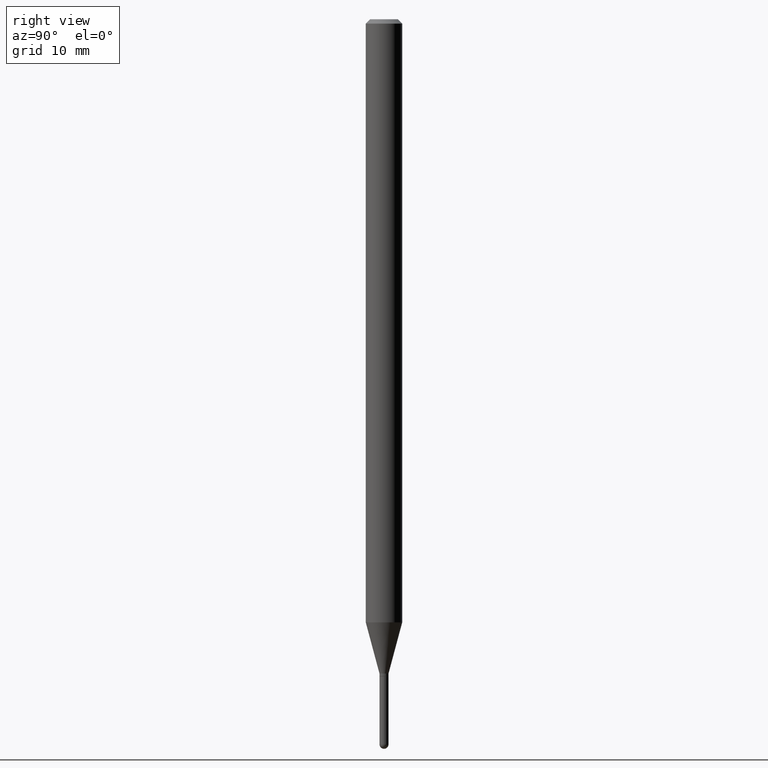
[diagram: clean part render]
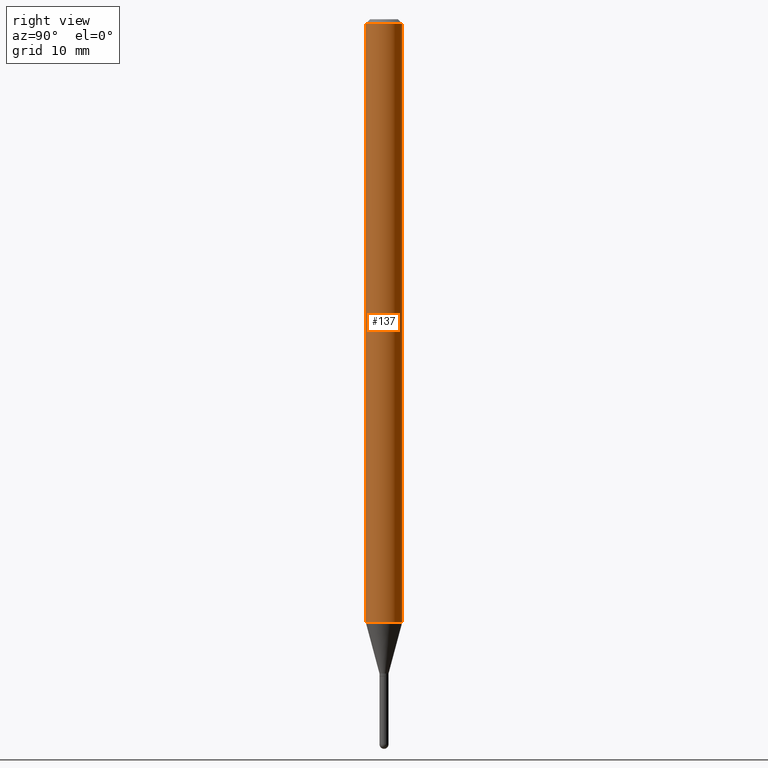
[diagram: same view with one face highlighted and labeled with its STEP entity id]
A machine part, right view. The second image highlights one B-rep face of the part: STEP entity #137.
In plain terms, the highlighted cylindrical surface (edge-blend (fillet) strip) has radius 1.5875 mm, axis along (-0, 0, 1).
Its self-contained STEP definition (entity closure, byte-faithful):
#6 = CIRCLE ( 'NONE', #80, 0.06250000000000000000 ) ;
#18 = CARTESIAN_POINT ( 'NONE',  ( 4.440892098501133991E-16, 0.06249999999999993755, -0.01500000000000054588 ) ) ;
#29 = EDGE_CURVE ( 'NONE', #136, #60, #338, .T. ) ;
#52 = DIRECTION ( 'NONE',  ( -2.445459540351193417E-29, 3.491494608044730760E-15, 1.000000000000000000 ) ) ;
#60 = VERTEX_POINT ( 'NONE', #18 ) ;
#68 = EDGE_CURVE ( 'NONE', #432, #247, #185, .T. ) ;
#80 = AXIS2_PLACEMENT_3D ( 'NONE', #118, #505, #509 ) ;
#118 = CARTESIAN_POINT ( 'NONE',  ( 5.053771064602474327E-29, -7.215500453472225430E-15, -2.066593612044262063 ) ) ;
#131 = CYLINDRICAL_SURFACE ( 'NONE', #455, 0.06250000000000000000 ) ;
#136 = VERTEX_POINT ( 'NONE', #242 ) ;
#137 = ADVANCED_FACE ( 'NONE', ( #203 ), #131, .T. ) ;
#155 = CARTESIAN_POINT ( 'NONE',  ( 3.668189310526870612E-31, -5.237241912067210994E-17, -0.01500000000000032904 ) ) ;
#157 = DIRECTION ( 'NONE',  ( -6.982962677686265922E-15, -1.000000000000000000, 3.483106191921935554E-15 ) ) ;
#185 = LINE ( 'NONE', #494, #437 ) ;
#202 = CIRCLE ( 'NONE', #405, 0.06250000000000000000 ) ;
#203 = FACE_OUTER_BOUND ( 'NONE', #442, .T. ) ;
#213 = EDGE_CURVE ( 'NONE', #247, #60, #202, .T. ) ;
#225 = DIRECTION ( 'NONE',  ( -2.445459540351193137E-29, 3.491494608044730760E-15, 1.000000000000000000 ) ) ;
#242 = CARTESIAN_POINT ( 'NONE',  ( 4.440892098501128074E-16, 0.06249999999999276273, -2.066593612044262507 ) ) ;
#247 = VERTEX_POINT ( 'NONE', #469 ) ;
#284 = EDGE_CURVE ( 'NONE', #432, #136, #6, .T. ) ;
#293 = ORIENTED_EDGE ( 'NONE', *, *, #284, .T. ) ;
#296 = ORIENTED_EDGE ( 'NONE', *, *, #29, .T. ) ;
#302 = DIRECTION ( 'NONE',  ( -2.445459540351193137E-29, 3.491494608044730760E-15, 1.000000000000000000 ) ) ;
#303 = CARTESIAN_POINT ( 'NONE',  ( -4.364351673553412316E-16, -0.06250000000000721645, -2.066593612044261619 ) ) ;
#322 = ORIENTED_EDGE ( 'NONE', *, *, #213, .F. ) ;
#335 = CARTESIAN_POINT ( 'NONE',  ( 0.000000000000000000, 0.000000000000000000, 0.000000000000000000 ) ) ;
#338 = LINE ( 'NONE', #459, #464 ) ;
#360 = DIRECTION ( 'NONE',  ( -2.445459540351193417E-29, 3.491494608044730760E-15, 1.000000000000000000 ) ) ;
#363 = ORIENTED_EDGE ( 'NONE', *, *, #68, .F. ) ;
#405 = AXIS2_PLACEMENT_3D ( 'NONE', #155, #360, #157 ) ;
#432 = VERTEX_POINT ( 'NONE', #303 ) ;
#437 = VECTOR ( 'NONE', #302, 39.37007874015748143 ) ;
#442 = EDGE_LOOP ( 'NONE', ( #293, #296, #322, #363 ) ) ;
#449 = DIRECTION ( 'NONE',  ( -6.982962677686265922E-15, -1.000000000000000000, 3.491494608044730760E-15 ) ) ;
#455 = AXIS2_PLACEMENT_3D ( 'NONE', #335, #52, #449 ) ;
#459 = CARTESIAN_POINT ( 'NONE',  ( 4.440892098500625669E-16, 0.06250000000000000000, -2.182184130027956725E-16 ) ) ;
#464 = VECTOR ( 'NONE', #225, 39.37007874015748143 ) ;
#469 = CARTESIAN_POINT ( 'NONE',  ( -4.364351673553912750E-16, -0.06250000000000005551, -0.01500000000000011047 ) ) ;
#494 = CARTESIAN_POINT ( 'NONE',  ( -4.364351673553916201E-16, -0.06250000000000000000, 2.182184130027956725E-16 ) ) ;
#505 = DIRECTION ( 'NONE',  ( -2.445459540351193417E-29, 3.491494608044730760E-15, 1.000000000000000000 ) ) ;
#509 = DIRECTION ( 'NONE',  ( -6.982962677686265922E-15, -1.000000000000000000, 4.370956789862821150E-15 ) ) ;